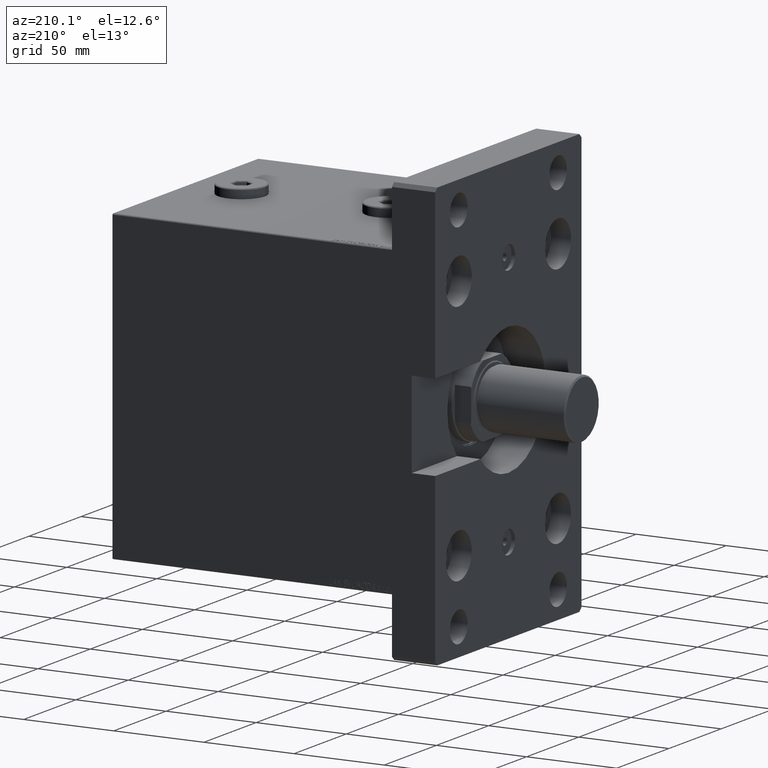
[diagram: clean part render]
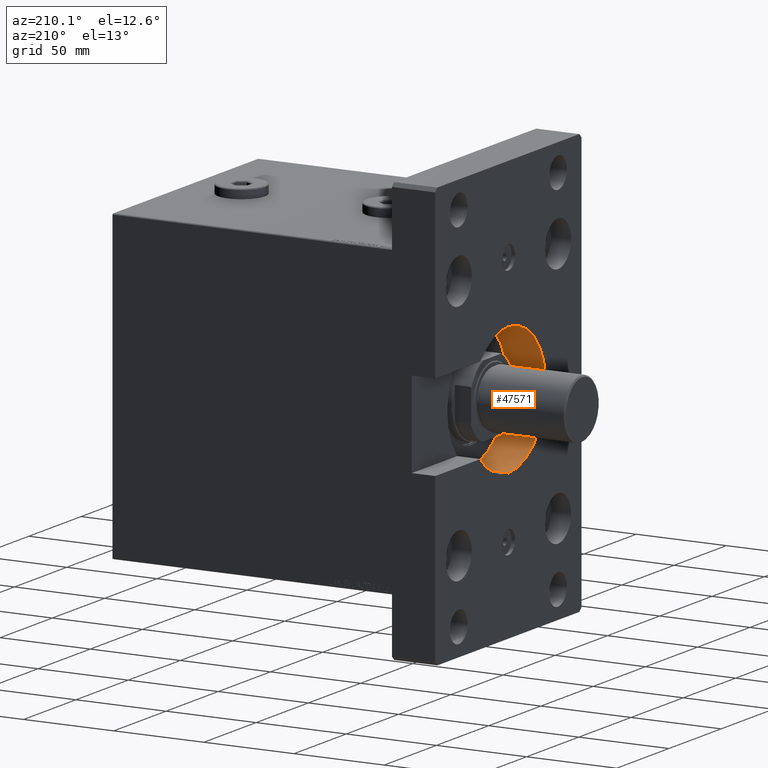
[diagram: same view with one face highlighted and labeled with its STEP entity id]
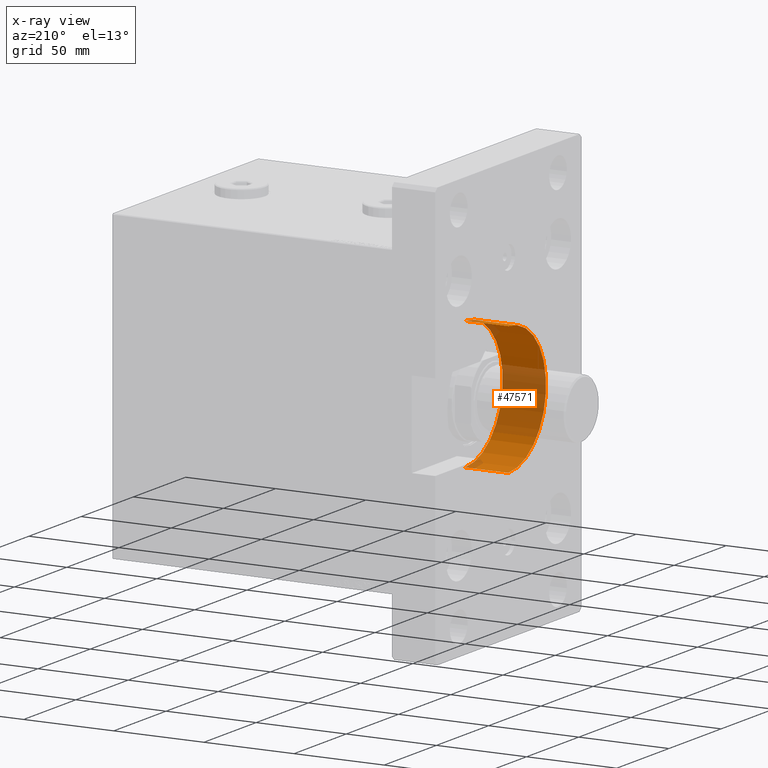
[diagram: x-ray of the same camera — body ghosted, the highlighted face saturated]
A machine part, auxiliary view. The second image highlights one B-rep face of the part: STEP entity #47571.
The next image is the same camera in x-ray: the body ghosted, the highlighted face saturated — about 49% of this face is hidden behind the body in this view.
In plain terms, the highlighted cylindrical surface (partial cylindrical patch) has radius 36 mm, axis along (-1, 0, 0).
Its self-contained STEP definition (entity closure, byte-faithful):
#1149 = VERTEX_POINT ( 'NONE', #27322 ) ;
#5403 = ORIENTED_EDGE ( 'NONE', *, *, #22196, .T. ) ;
#6433 = CIRCLE ( 'NONE', #28120, 36.00000000000000000 ) ;
#9053 = EDGE_LOOP ( 'NONE', ( #34220, #5403, #16253, #19576 ) ) ;
#9528 = CARTESIAN_POINT ( 'NONE',  ( 0.000000000000000000, 0.000000000000000000, 24.00000000000000000 ) ) ;
#10015 = DIRECTION ( 'NONE',  ( 1.000000000000000000, 0.000000000000000000, 0.000000000000000000 ) ) ;
#11024 = CARTESIAN_POINT ( 'NONE',  ( -36.00000000000000000, 4.408728476930470856E-15, 24.00000000000000000 ) ) ;
#11063 = DIRECTION ( 'NONE',  ( 1.000000000000000000, 0.000000000000000000, 0.000000000000000000 ) ) ;
#12210 = AXIS2_PLACEMENT_3D ( 'NONE', #36919, #37650, #41540 ) ;
#12685 = CARTESIAN_POINT ( 'NONE',  ( 36.00000000000000000, 0.000000000000000000, 0.000000000000000000 ) ) ;
#12953 = DIRECTION ( 'NONE',  ( -0.000000000000000000, -0.000000000000000000, 1.000000000000000000 ) ) ;
#13873 = EDGE_CURVE ( 'NONE', #28372, #39884, #6433, .T. ) ;
#15110 = CYLINDRICAL_SURFACE ( 'NONE', #12210, 36.00000000000000000 ) ;
#16253 = ORIENTED_EDGE ( 'NONE', *, *, #13873, .T. ) ;
#19576 = ORIENTED_EDGE ( 'NONE', *, *, #34555, .F. ) ;
#19980 = LINE ( 'NONE', #41839, #38896 ) ;
#22196 = EDGE_CURVE ( 'NONE', #1149, #28372, #32121, .T. ) ;
#27322 = CARTESIAN_POINT ( 'NONE',  ( -36.00000000000000000, 4.408728476930470856E-15, 0.000000000000000000 ) ) ;
#27566 = AXIS2_PLACEMENT_3D ( 'NONE', #44551, #29965, #11063 ) ;
#28120 = AXIS2_PLACEMENT_3D ( 'NONE', #9528, #28190, #10015 ) ;
#28190 = DIRECTION ( 'NONE',  ( -0.000000000000000000, 0.000000000000000000, 1.000000000000000000 ) ) ;
#28372 = VERTEX_POINT ( 'NONE', #11024 ) ;
#29136 = CIRCLE ( 'NONE', #27566, 36.00000000000000000 ) ;
#29965 = DIRECTION ( 'NONE',  ( 0.000000000000000000, 0.000000000000000000, 1.000000000000000000 ) ) ;
#32121 = LINE ( 'NONE', #43300, #34553 ) ;
#33766 = FACE_OUTER_BOUND ( 'NONE', #9053, .T. ) ;
#34220 = ORIENTED_EDGE ( 'NONE', *, *, #44559, .F. ) ;
#34553 = VECTOR ( 'NONE', #43544, 1000.000000000000000 ) ;
#34555 = EDGE_CURVE ( 'NONE', #45913, #39884, #19980, .T. ) ;
#36919 = CARTESIAN_POINT ( 'NONE',  ( 0.000000000000000000, 0.000000000000000000, 0.000000000000000000 ) ) ;
#37650 = DIRECTION ( 'NONE',  ( -0.000000000000000000, -0.000000000000000000, 1.000000000000000000 ) ) ;
#38896 = VECTOR ( 'NONE', #12953, 1000.000000000000000 ) ;
#39884 = VERTEX_POINT ( 'NONE', #40576 ) ;
#40576 = CARTESIAN_POINT ( 'NONE',  ( 36.00000000000000000, 0.000000000000000000, 24.00000000000000000 ) ) ;
#41540 = DIRECTION ( 'NONE',  ( 1.000000000000000000, 0.000000000000000000, 0.000000000000000000 ) ) ;
#41839 = CARTESIAN_POINT ( 'NONE',  ( 36.00000000000000000, 0.000000000000000000, 0.000000000000000000 ) ) ;
#43300 = CARTESIAN_POINT ( 'NONE',  ( -36.00000000000000000, 4.408728476930470856E-15, 0.000000000000000000 ) ) ;
#43544 = DIRECTION ( 'NONE',  ( -0.000000000000000000, -0.000000000000000000, 1.000000000000000000 ) ) ;
#44551 = CARTESIAN_POINT ( 'NONE',  ( 0.000000000000000000, 0.000000000000000000, 0.000000000000000000 ) ) ;
#44559 = EDGE_CURVE ( 'NONE', #1149, #45913, #29136, .T. ) ;
#45913 = VERTEX_POINT ( 'NONE', #12685 ) ;
#47571 = ADVANCED_FACE ( 'NONE', ( #33766 ), #15110, .F. ) ;